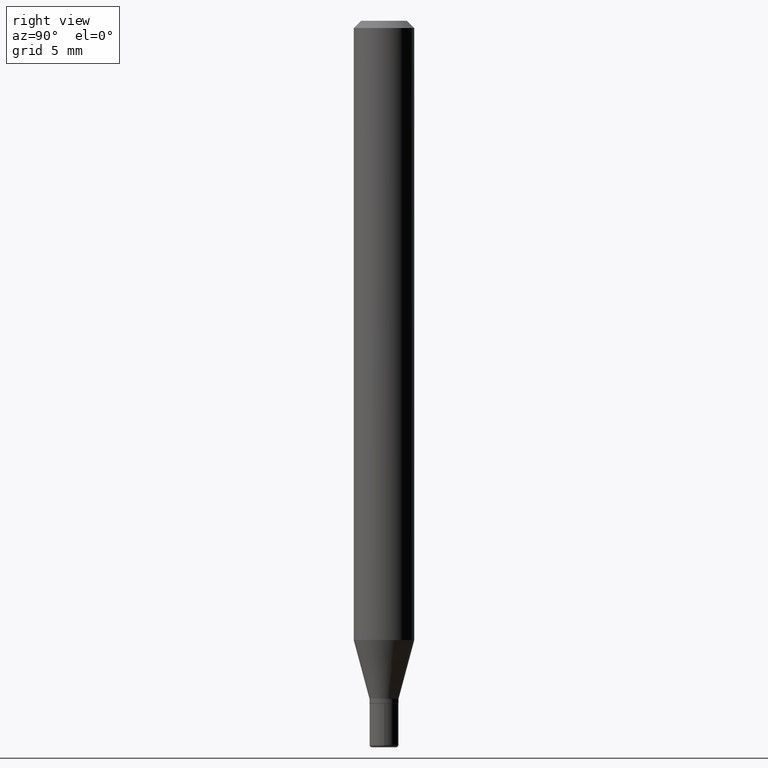
[diagram: clean part render]
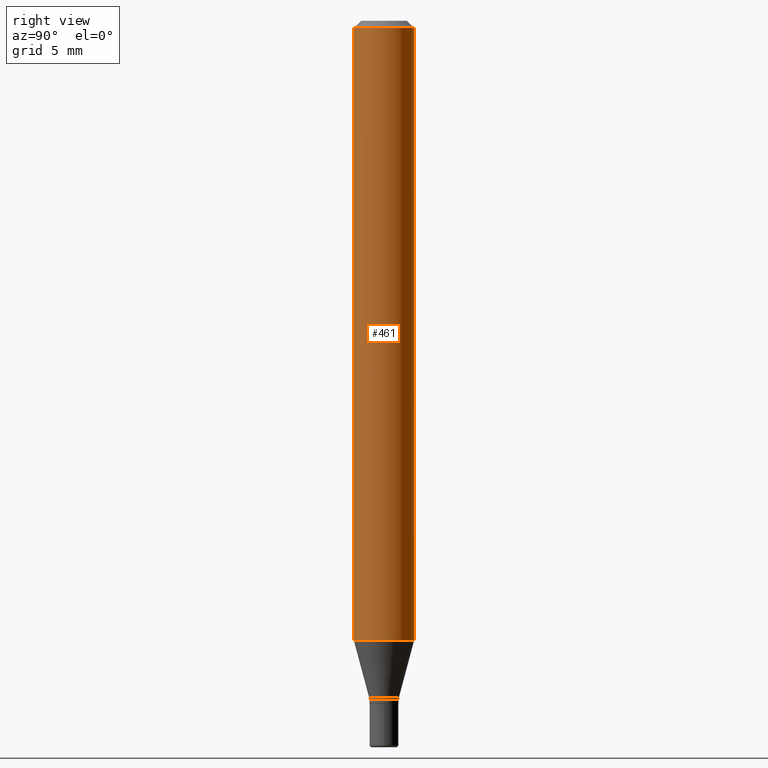
[diagram: same view with one face highlighted and labeled with its STEP entity id]
A machine part, right view. The second image highlights one B-rep face of the part: STEP entity #461.
In plain terms, the highlighted cylindrical surface (edge-blend (fillet) strip) has radius 1.5875 mm, axis along (-0, 0, 1).
Its self-contained STEP definition (entity closure, byte-faithful):
#10 = CIRCLE ( 'NONE', #477, 0.06250000000000000000 ) ;
#11 = EDGE_CURVE ( 'NONE', #268, #414, #246, .T. ) ;
#14 = VECTOR ( 'NONE', #488, 39.37007874015748143 ) ;
#17 = DIRECTION ( 'NONE',  ( -2.445577633895310376E-29, 3.491325491368088236E-15, 1.000000000000000000 ) ) ;
#40 = CIRCLE ( 'NONE', #47, 0.06250000000000000000 ) ;
#47 = AXIS2_PLACEMENT_3D ( 'NONE', #191, #17, #348 ) ;
#60 = EDGE_CURVE ( 'NONE', #508, #349, #276, .T. ) ;
#71 = FACE_OUTER_BOUND ( 'NONE', #258, .T. ) ;
#105 = ORIENTED_EDGE ( 'NONE', *, *, #11, .T. ) ;
#107 = AXIS2_PLACEMENT_3D ( 'NONE', #237, #163, #407 ) ;
#163 = DIRECTION ( 'NONE',  ( -2.445577633895310376E-29, 3.491325491368088236E-15, 1.000000000000000000 ) ) ;
#167 = DIRECTION ( 'NONE',  ( -2.445577633895310376E-29, 3.491325491368088236E-15, 1.000000000000000000 ) ) ;
#185 = CARTESIAN_POINT ( 'NONE',  ( -4.364351673553912750E-16, -0.06250000000000005551, -0.01499999999999948597 ) ) ;
#191 = CARTESIAN_POINT ( 'NONE',  ( 3.668366450842892977E-31, -5.236988237052028199E-17, -0.01499999999999970281 ) ) ;
#206 = CARTESIAN_POINT ( 'NONE',  ( 4.440892098500625669E-16, 0.06250000000000000000, -2.182078432105055147E-16 ) ) ;
#214 = ORIENTED_EDGE ( 'NONE', *, *, #60, .F. ) ;
#237 = CARTESIAN_POINT ( 'NONE',  ( 0.000000000000000000, 0.000000000000000000, 0.000000000000000000 ) ) ;
#246 = LINE ( 'NONE', #206, #272 ) ;
#256 = CARTESIAN_POINT ( 'NONE',  ( 4.440892098500935790E-16, 0.06249999999999550360, -1.278708348754012514 ) ) ;
#258 = EDGE_LOOP ( 'NONE', ( #327, #105, #418, #214 ) ) ;
#268 = VERTEX_POINT ( 'NONE', #256 ) ;
#272 = VECTOR ( 'NONE', #167, 39.37007874015748143 ) ;
#275 = CARTESIAN_POINT ( 'NONE',  ( 3.127180537988016728E-29, -4.464387054030078647E-15, -1.278708348754012292 ) ) ;
#276 = LINE ( 'NONE', #324, #14 ) ;
#315 = CARTESIAN_POINT ( 'NONE',  ( -4.364351673553605094E-16, -0.06250000000000449640, -1.278708348754012070 ) ) ;
#324 = CARTESIAN_POINT ( 'NONE',  ( -4.364351673553916201E-16, -0.06250000000000000000, 2.182078432105055147E-16 ) ) ;
#327 = ORIENTED_EDGE ( 'NONE', *, *, #496, .T. ) ;
#346 = CARTESIAN_POINT ( 'NONE',  ( 4.440892098500940720E-16, 0.06249999999999995143, -0.01499999999999992138 ) ) ;
#347 = EDGE_CURVE ( 'NONE', #349, #414, #40, .T. ) ;
#348 = DIRECTION ( 'NONE',  ( -6.982962677686265922E-15, -1.000000000000000000, 3.483106191921935554E-15 ) ) ;
#349 = VERTEX_POINT ( 'NONE', #185 ) ;
#398 = DIRECTION ( 'NONE',  ( -6.982962677686265922E-15, -1.000000000000000000, 4.370956789862821150E-15 ) ) ;
#407 = DIRECTION ( 'NONE',  ( -6.982962677686265922E-15, -1.000000000000000000, 3.491325491368088236E-15 ) ) ;
#414 = VERTEX_POINT ( 'NONE', #346 ) ;
#418 = ORIENTED_EDGE ( 'NONE', *, *, #347, .F. ) ;
#445 = CYLINDRICAL_SURFACE ( 'NONE', #107, 0.06250000000000000000 ) ;
#461 = ADVANCED_FACE ( 'NONE', ( #71 ), #445, .T. ) ;
#477 = AXIS2_PLACEMENT_3D ( 'NONE', #275, #518, #398 ) ;
#488 = DIRECTION ( 'NONE',  ( -2.445577633895310376E-29, 3.491325491368088236E-15, 1.000000000000000000 ) ) ;
#496 = EDGE_CURVE ( 'NONE', #508, #268, #10, .T. ) ;
#508 = VERTEX_POINT ( 'NONE', #315 ) ;
#518 = DIRECTION ( 'NONE',  ( -2.445577633895310376E-29, 3.491325491368088236E-15, 1.000000000000000000 ) ) ;